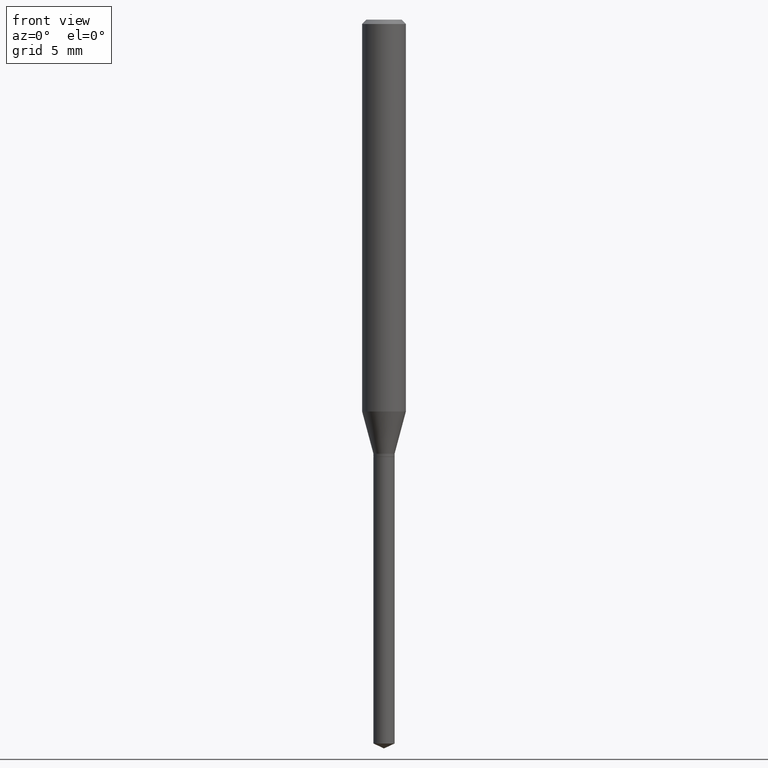
[diagram: clean part render]
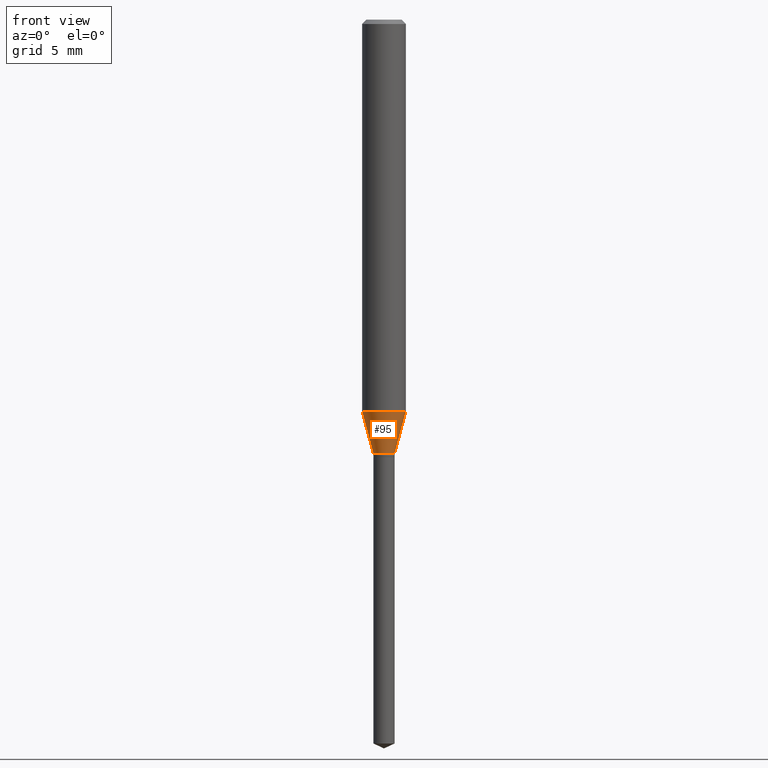
[diagram: same view with one face highlighted and labeled with its STEP entity id]
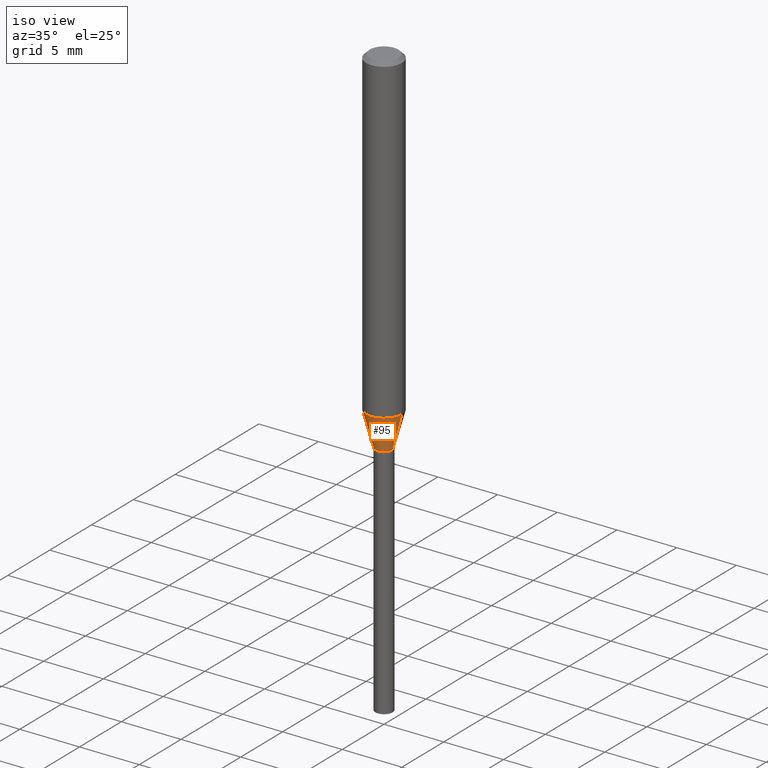
[diagram: same view with one face highlighted and labeled with its STEP entity id]
A machine part, front view. The second image highlights one B-rep face of the part: STEP entity #95.
A second angle (iso view) of the same face is appended — the face is thin or edge-on in the first view.
In plain terms, the highlighted conical surface has half-angle 15 deg.
Its self-contained STEP definition (entity closure, byte-faithful):
#12 = AXIS2_PLACEMENT_3D ( 'NONE', #252, #24, #107 ) ;
#22 = DIRECTION ( 'NONE',  ( 0.2588190451025214611, 1.565188264969621573E-15, 0.9659258262890682012 ) ) ;
#24 = DIRECTION ( 'NONE',  ( -2.445468806185136597E-29, 3.491481338843145583E-15, 1.000000000000000000 ) ) ;
#29 = EDGE_LOOP ( 'NONE', ( #49, #302, #263, #85 ) ) ;
#34 = CARTESIAN_POINT ( 'NONE',  ( -0.05905000000000013710, -3.276759618944889162E-15, -1.058672450369148921 ) ) ;
#49 = ORIENTED_EDGE ( 'NONE', *, *, #113, .F. ) ;
#65 = DIRECTION ( 'NONE',  ( 1.000000000000000000, -6.982962677686275388E-15, 0.000000000000000000 ) ) ;
#73 = CARTESIAN_POINT ( 'NONE',  ( 2.588950453345336253E-29, -3.696335104411230233E-15, -1.058672450369148921 ) ) ;
#75 = CARTESIAN_POINT ( 'NONE',  ( 0.02855000000000000593, -4.293125454241531181E-15, -1.172499999999999876 ) ) ;
#84 = VECTOR ( 'NONE', #22, 39.37007874015747433 ) ;
#85 = ORIENTED_EDGE ( 'NONE', *, *, #315, .F. ) ;
#92 = EDGE_CURVE ( 'NONE', #316, #195, #248, .T. ) ;
#95 = ADVANCED_FACE ( 'NONE', ( #177 ), #486, .T. ) ;
#97 = CARTESIAN_POINT ( 'NONE',  ( -0.02855000000000000593, -3.890901918734078447E-15, -1.172499999999999876 ) ) ;
#100 = CARTESIAN_POINT ( 'NONE',  ( 2.867312175252072391E-29, -4.093761869793587585E-15, -1.172499999999999876 ) ) ;
#107 = DIRECTION ( 'NONE',  ( 1.000000000000000000, -6.982962677686275388E-15, 0.000000000000000000 ) ) ;
#113 = EDGE_CURVE ( 'NONE', #153, #172, #139, .T. ) ;
#124 = VECTOR ( 'NONE', #403, 39.37007874015747433 ) ;
#130 = EDGE_CURVE ( 'NONE', #153, #316, #356, .T. ) ;
#139 = LINE ( 'NONE', #97, #124 ) ;
#153 = VERTEX_POINT ( 'NONE', #333 ) ;
#172 = VERTEX_POINT ( 'NONE', #34 ) ;
#177 = FACE_OUTER_BOUND ( 'NONE', #29, .T. ) ;
#194 = AXIS2_PLACEMENT_3D ( 'NONE', #73, #225, #345 ) ;
#195 = VERTEX_POINT ( 'NONE', #215 ) ;
#215 = CARTESIAN_POINT ( 'NONE',  ( 0.05905000000000013710, -4.108679050528605153E-15, -1.058672450369148921 ) ) ;
#222 = CARTESIAN_POINT ( 'NONE',  ( 0.02855000000000000593, -4.293125454241531181E-15, -1.172499999999999876 ) ) ;
#225 = DIRECTION ( 'NONE',  ( -2.445468806185136597E-29, 3.491481338843145583E-15, 1.000000000000000000 ) ) ;
#235 = CIRCLE ( 'NONE', #194, 0.05905000000000013710 ) ;
#248 = LINE ( 'NONE', #222, #84 ) ;
#252 = CARTESIAN_POINT ( 'NONE',  ( 2.867312175252072391E-29, -4.093761869793587585E-15, -1.172499999999999876 ) ) ;
#263 = ORIENTED_EDGE ( 'NONE', *, *, #92, .T. ) ;
#302 = ORIENTED_EDGE ( 'NONE', *, *, #130, .T. ) ;
#315 = EDGE_CURVE ( 'NONE', #172, #195, #235, .T. ) ;
#316 = VERTEX_POINT ( 'NONE', #75 ) ;
#333 = CARTESIAN_POINT ( 'NONE',  ( -0.02855000000000000593, -3.905042418156393020E-15, -1.172499999999999876 ) ) ;
#345 = DIRECTION ( 'NONE',  ( 1.000000000000000000, -6.982962677686264344E-15, 0.000000000000000000 ) ) ;
#356 = CIRCLE ( 'NONE', #388, 0.02855000000000000593 ) ;
#376 = DIRECTION ( 'NONE',  ( -2.445468806185136597E-29, 3.491481338843145583E-15, 1.000000000000000000 ) ) ;
#388 = AXIS2_PLACEMENT_3D ( 'NONE', #100, #376, #65 ) ;
#403 = DIRECTION ( 'NONE',  ( -0.2588190451025214611, 5.211531920934551042E-15, 0.9659258262890682012 ) ) ;
#486 = CONICAL_SURFACE ( 'NONE', #12, 0.02855000000000000593, 0.2617993877991501295 ) ;